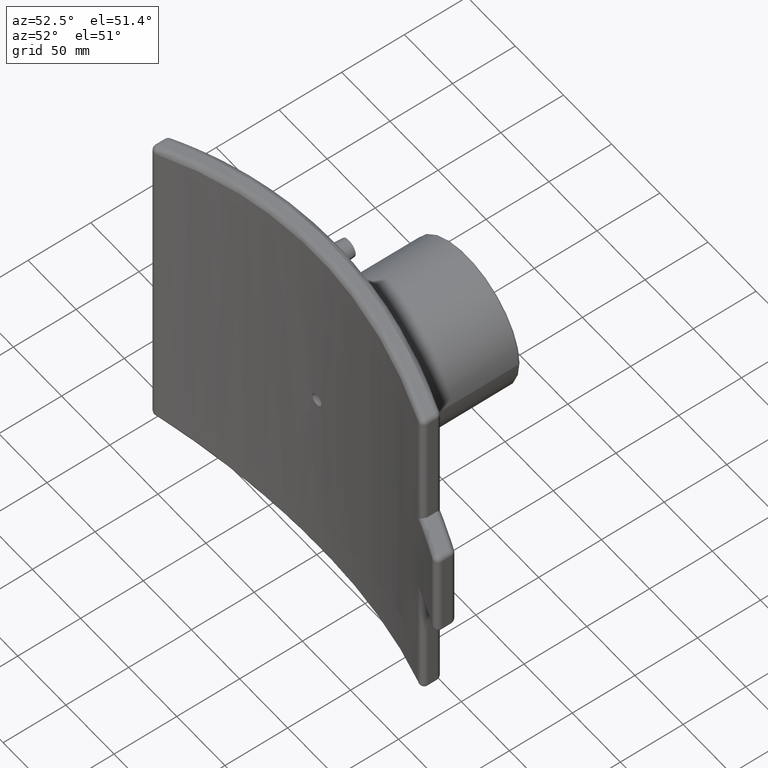
[diagram: clean part render]
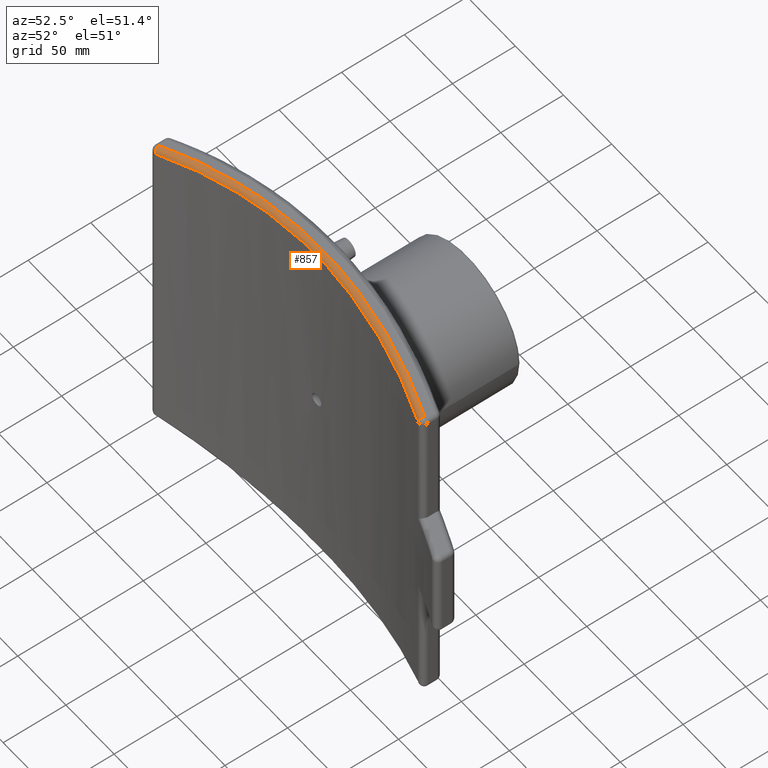
[diagram: same view with one face highlighted and labeled with its STEP entity id]
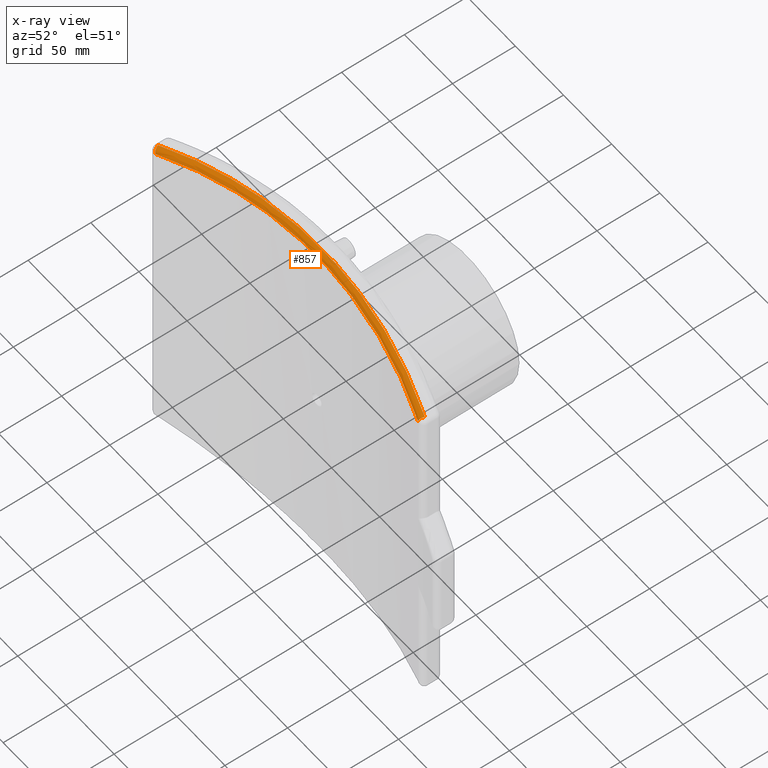
[diagram: x-ray of the same camera — body ghosted, the highlighted face saturated]
A machine part, auxiliary view. The second image highlights one B-rep face of the part: STEP entity #857.
The next image is the same camera in x-ray: the body ghosted, the highlighted face saturated — about 0% of this face is hidden behind the body in this view.
In plain terms, the highlighted face is a freeform B-spline surface patch.
Its self-contained STEP definition (entity closure, byte-faithful):
#92=B_SPLINE_SURFACE_WITH_KNOTS('',3,3,((#1993,#1994,#1995,#1996,#1997,
#1998,#1999),(#2000,#2001,#2002,#2003,#2004,#2005,#2006),(#2007,#2008,#2009,
#2010,#2011,#2012,#2013),(#2014,#2015,#2016,#2017,#2018,#2019,#2020),(#2021,
#2022,#2023,#2024,#2025,#2026,#2027),(#2028,#2029,#2030,#2031,#2032,#2033,
#2034)),.UNSPECIFIED.,.F.,.F.,.F.,(4,1,1,4),(4,1,1,1,4),(0.,0.285714285714286,
0.571428571428571,1.),(4.69532305725361,8.7383121160539,16.8242902336545,
24.9102683512551,32.9962464688556),.UNSPECIFIED.);
#106=B_SPLINE_CURVE_WITH_KNOTS('',3,(#2035,#2036,#2037,#2038,#2039,#2040,
#2041),.UNSPECIFIED.,.F.,.F.,(4,1,1,1,4),(-32.9962464688556,-24.9102683512551,
-16.8242902336545,-8.7383121160539,-4.69532305725361),.UNSPECIFIED.);
#107=B_SPLINE_CURVE_WITH_KNOTS('',3,(#2042,#2043,#2044,#2045,#2046,#2047,
#2048),.UNSPECIFIED.,.F.,.F.,(4,1,1,1,4),(4.69532305725361,8.7383121160539,
16.8242902336545,24.9102683512551,32.9962464688556),.UNSPECIFIED.);
#220=FACE_OUTER_BOUND('',#307,.T.);
#307=EDGE_LOOP('',(#699,#700,#701,#702));
#378=CIRCLE('',#961,4.00000000000005);
#387=CIRCLE('',#975,4.00000000000005);
#448=VERTEX_POINT('',#1901);
#450=VERTEX_POINT('',#1904);
#456=VERTEX_POINT('',#1987);
#458=VERTEX_POINT('',#1990);
#530=EDGE_CURVE('',#450,#448,#378,.F.);
#544=EDGE_CURVE('',#458,#456,#387,.F.);
#546=EDGE_CURVE('',#448,#458,#106,.T.);
#547=EDGE_CURVE('',#456,#450,#107,.T.);
#699=ORIENTED_EDGE('',*,*,#530,.T.);
#700=ORIENTED_EDGE('',*,*,#546,.T.);
#701=ORIENTED_EDGE('',*,*,#544,.T.);
#702=ORIENTED_EDGE('',*,*,#547,.T.);
#857=ADVANCED_FACE('',(#220),#92,.F.);
#961=AXIS2_PLACEMENT_3D('',#1905,#1171,#1172);
#975=AXIS2_PLACEMENT_3D('',#1991,#1203,#1204);
#1171=DIRECTION('center_axis',(-0.922436725609499,-0.334567633765942,-0.192808157719232));
#1172=DIRECTION('ref_axis',(-0.204598832189966,0.,0.978845911196702));
#1203=DIRECTION('center_axis',(0.922436725609501,-0.334567633765946,-0.192808157719216));
#1204=DIRECTION('ref_axis',(-0.340965346534663,-0.940075865269658,0.));
#1901=CARTESIAN_POINT('',(-136.386138613858,376.030346107866,131.757613074014));
#1904=CARTESIAN_POINT('',(-138.568395328756,379.790649568945,135.672996718801));
#1905=CARTESIAN_POINT('Origin',(-137.749999999997,379.790649568945,131.757613074014));
#1987=CARTESIAN_POINT('',(138.568395328763,379.790649568942,135.672996718801));
#1990=CARTESIAN_POINT('',(136.386138613865,376.030346107864,131.757613074014));
#1991=CARTESIAN_POINT('Origin',(137.750000000004,379.790649568942,131.757613074014));
#1993=CARTESIAN_POINT('Ctrl Pts',(138.568395328763,379.790649568942,135.672996718801));
#1994=CARTESIAN_POINT('Ctrl Pts',(126.062333347387,384.29980635117,138.287019669111));
#1995=CARTESIAN_POINT('Ctrl Pts',(87.7126851521758,396.060459390269,145.200325942912));
#1996=CARTESIAN_POINT('Ctrl Pts',(20.5158493136542,406.21027138074,151.342169564408));
#1997=CARTESIAN_POINT('Ctrl Pts',(-61.2590063365117,402.112309878542,148.846405047353));
#1998=CARTESIAN_POINT('Ctrl Pts',(-113.556489039839,388.808884649425,140.900997121133));
#1999=CARTESIAN_POINT('Ctrl Pts',(-138.568395328757,379.790649568945,135.672996718801));
#2000=CARTESIAN_POINT('Ctrl Pts',(138.36371533266,379.20167112726,135.715779027739));
#2001=CARTESIAN_POINT('Ctrl Pts',(125.876263451307,383.708893091373,138.321861334549));
#2002=CARTESIAN_POINT('Ctrl Pts',(87.5834828847502,395.464806819469,145.214458029847));
#2003=CARTESIAN_POINT('Ctrl Pts',(20.4856640028116,405.611133310959,151.338211913276));
#2004=CARTESIAN_POINT('Ctrl Pts',(-61.1688431551786,401.514519004917,148.849796667034));
#2005=CARTESIAN_POINT('Ctrl Pts',(-113.389028919863,388.216036605189,140.927898281283));
#2006=CARTESIAN_POINT('Ctrl Pts',(-138.363715332653,379.201671127263,135.715779027739));
#2007=CARTESIAN_POINT('Ctrl Pts',(137.894199274437,378.026780467995,135.508223144019));
#2008=CARTESIAN_POINT('Ctrl Pts',(125.450400759558,382.530087510085,138.10191985021));
#2009=CARTESIAN_POINT('Ctrl Pts',(87.2896039489902,394.276295622872,144.962267699277));
#2010=CARTESIAN_POINT('Ctrl Pts',(20.4173445802241,404.415531540902,151.058194197371));
#2011=CARTESIAN_POINT('Ctrl Pts',(-60.964392318015,400.321620294274,148.581025172899));
#2012=CARTESIAN_POINT('Ctrl Pts',(-113.006818834782,387.033316170021,140.695571411901));
#2013=CARTESIAN_POINT('Ctrl Pts',(-137.89419927443,378.026780467997,135.508223144019));
#2014=CARTESIAN_POINT('Ctrl Pts',(137.034072302267,376.407092468931,134.203726853476));
#2015=CARTESIAN_POINT('Ctrl Pts',(124.670247459233,380.898387488391,136.7911739646));
#2016=CARTESIAN_POINT('Ctrl Pts',(86.7518351094211,392.613996045933,143.635137207012));
#2017=CARTESIAN_POINT('Ctrl Pts',(20.2925130530698,402.727810293371,149.716961662781));
#2018=CARTESIAN_POINT('Ctrl Pts',(-60.5906709113765,398.644114802368,147.24546000372));
#2019=CARTESIAN_POINT('Ctrl Pts',(-112.306637814322,385.389604334771,139.378576040002));
#2020=CARTESIAN_POINT('Ctrl Pts',(-137.03407230226,376.407092468933,134.203726853476));
#2021=CARTESIAN_POINT('Ctrl Pts',(136.55606339191,375.968714421559,132.677516180863));
#2022=CARTESIAN_POINT('Ctrl Pts',(124.234396662768,380.444266984749,135.271783241028));
#2023=CARTESIAN_POINT('Ctrl Pts',(86.4460557936579,392.117748938272,142.133416268333));
#2024=CARTESIAN_POINT('Ctrl Pts',(20.2205132551772,402.194494032017,148.2298155571));
#2025=CARTESIAN_POINT('Ctrl Pts',(-60.3761240358326,398.125682628119,145.752544849449));
#2026=CARTESIAN_POINT('Ctrl Pts',(-111.912944397968,384.919741648864,137.866005146766));
#2027=CARTESIAN_POINT('Ctrl Pts',(-136.556063391903,375.968714421561,132.677516180863));
#2028=CARTESIAN_POINT('Ctrl Pts',(136.386138613865,376.030346107864,131.757613074014));
#2029=CARTESIAN_POINT('Ctrl Pts',(124.077029463407,380.494857773435,134.356197408854));
#2030=CARTESIAN_POINT('Ctrl Pts',(86.3313341182623,392.139068703237,141.228673177637));
#2031=CARTESIAN_POINT('Ctrl Pts',(20.1927536335726,402.188387505684,147.334242610363));
#2032=CARTESIAN_POINT('Ctrl Pts',(-60.2942634194223,398.130999879744,144.853218265608));
#2033=CARTESIAN_POINT('Ctrl Pts',(-111.768134558721,384.959291732104,136.954736514122));
#2034=CARTESIAN_POINT('Ctrl Pts',(-136.386138613858,376.030346107866,131.757613074014));
#2035=CARTESIAN_POINT('Ctrl Pts',(-136.386138613858,376.030346107866,131.757613074014));
#2036=CARTESIAN_POINT('Ctrl Pts',(-111.768134558721,384.959291732104,136.954736514122));
#2037=CARTESIAN_POINT('Ctrl Pts',(-60.2942634194223,398.130999879744,144.853218265608));
#2038=CARTESIAN_POINT('Ctrl Pts',(20.1927536335726,402.188387505684,147.334242610363));
#2039=CARTESIAN_POINT('Ctrl Pts',(86.3313341182623,392.139068703237,141.228673177637));
#2040=CARTESIAN_POINT('Ctrl Pts',(124.077029463407,380.494857773435,134.356197408854));
#2041=CARTESIAN_POINT('Ctrl Pts',(136.386138613865,376.030346107864,131.757613074014));
#2042=CARTESIAN_POINT('Ctrl Pts',(138.568395328763,379.790649568942,135.672996718801));
#2043=CARTESIAN_POINT('Ctrl Pts',(126.062333347387,384.29980635117,138.287019669111));
#2044=CARTESIAN_POINT('Ctrl Pts',(87.7126851521758,396.060459390269,145.200325942912));
#2045=CARTESIAN_POINT('Ctrl Pts',(20.5158493136542,406.21027138074,151.342169564408));
#2046=CARTESIAN_POINT('Ctrl Pts',(-61.2590063365117,402.112309878542,148.846405047353));
#2047=CARTESIAN_POINT('Ctrl Pts',(-113.556489039839,388.808884649425,140.900997121133));
#2048=CARTESIAN_POINT('Ctrl Pts',(-138.568395328757,379.790649568945,135.672996718801));